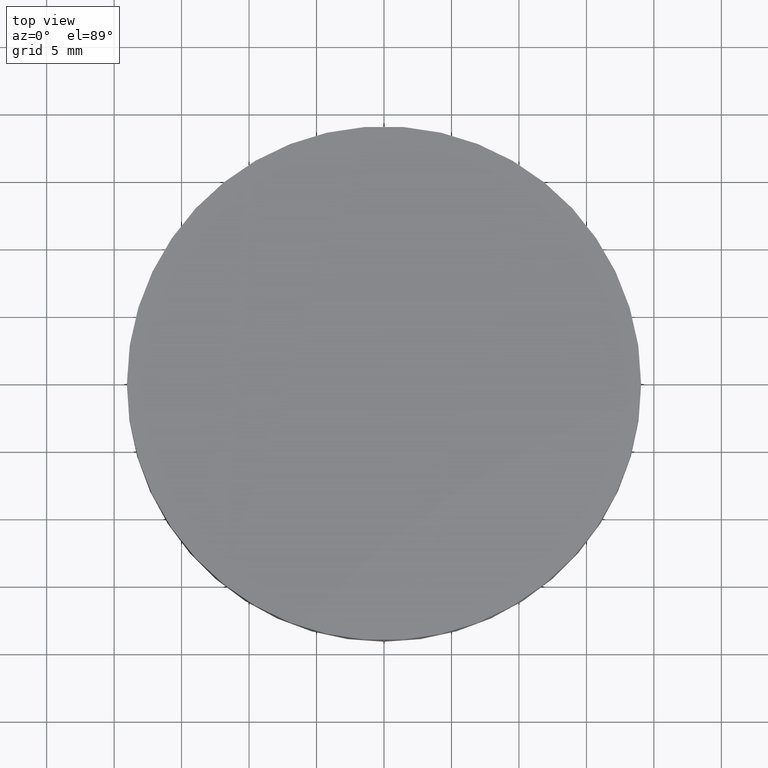
[diagram: clean part render]
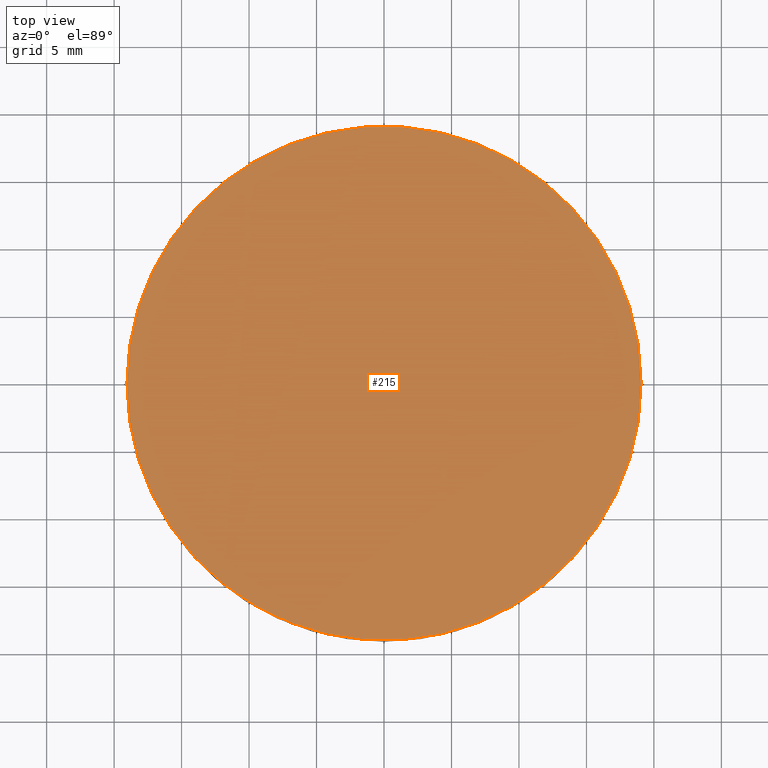
[diagram: same view with one face highlighted and labeled with its STEP entity id]
A machine part, top view. The second image highlights one B-rep face of the part: STEP entity #215.
In plain terms, the highlighted planar face has unit normal (0, 0, 1).
Its self-contained STEP definition (entity closure, byte-faithful):
#1 = CIRCLE ( 'NONE', #19, 19.05000000000000100 ) ;
#5 = CARTESIAN_POINT ( 'NONE',  ( -4.731295993454753300E-015, -8.881784197001250400E-016, 4.099999999999999600 ) ) ;
#15 = EDGE_CURVE ( 'NONE', #77, #233, #25, .T. ) ;
#17 = EDGE_LOOP ( 'NONE', ( #107, #143 ) ) ;
#19 = AXIS2_PLACEMENT_3D ( 'NONE', #5, #186, #156 ) ;
#25 = CIRCLE ( 'NONE', #230, 19.05000000000000100 ) ;
#30 = CARTESIAN_POINT ( 'NONE',  ( 0.0000000000000000000, 39.06600000000000300, 4.099999999999999600 ) ) ;
#43 = AXIS2_PLACEMENT_3D ( 'NONE', #30, #134, #135 ) ;
#77 = VERTEX_POINT ( 'NONE', #112 ) ;
#96 = PLANE ( 'NONE',  #43 ) ;
#107 = ORIENTED_EDGE ( 'NONE', *, *, #157, .F. ) ;
#112 = CARTESIAN_POINT ( 'NONE',  ( -19.05000000000000400, 1.444773732675583000E-015, 4.099999999999999600 ) ) ;
#131 = DIRECTION ( 'NONE',  ( 1.000000000000000000, 0.0000000000000000000, 0.0000000000000000000 ) ) ;
#134 = DIRECTION ( 'NONE',  ( 0.0000000000000000000, 0.0000000000000000000, 1.000000000000000000 ) ) ;
#135 = DIRECTION ( 'NONE',  ( 1.000000000000000000, 0.0000000000000000000, -0.0000000000000000000 ) ) ;
#143 = ORIENTED_EDGE ( 'NONE', *, *, #15, .F. ) ;
#153 = CARTESIAN_POINT ( 'NONE',  ( 19.04999999999999700, -8.881784197001250400E-016, 4.099999999999999600 ) ) ;
#156 = DIRECTION ( 'NONE',  ( 1.000000000000000000, 0.0000000000000000000, 0.0000000000000000000 ) ) ;
#157 = EDGE_CURVE ( 'NONE', #233, #77, #1, .T. ) ;
#180 = CARTESIAN_POINT ( 'NONE',  ( -4.731295993454753300E-015, -8.881784197001250400E-016, 4.099999999999999600 ) ) ;
#186 = DIRECTION ( 'NONE',  ( 1.165588477296749900E-017, 5.434385993627839900E-034, -1.000000000000000000 ) ) ;
#190 = FACE_OUTER_BOUND ( 'NONE', #17, .T. ) ;
#200 = DIRECTION ( 'NONE',  ( 1.165588477296749900E-017, 5.434385993627839900E-034, -1.000000000000000000 ) ) ;
#215 = ADVANCED_FACE ( 'NONE', ( #190 ), #96, .T. ) ;
#230 = AXIS2_PLACEMENT_3D ( 'NONE', #180, #200, #131 ) ;
#233 = VERTEX_POINT ( 'NONE', #153 ) ;